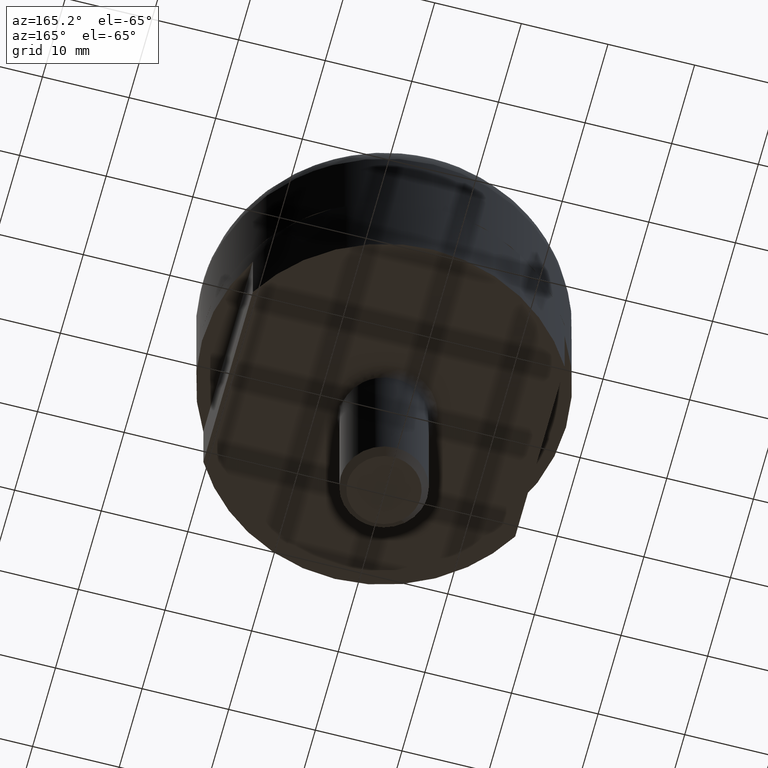
[diagram: clean part render]
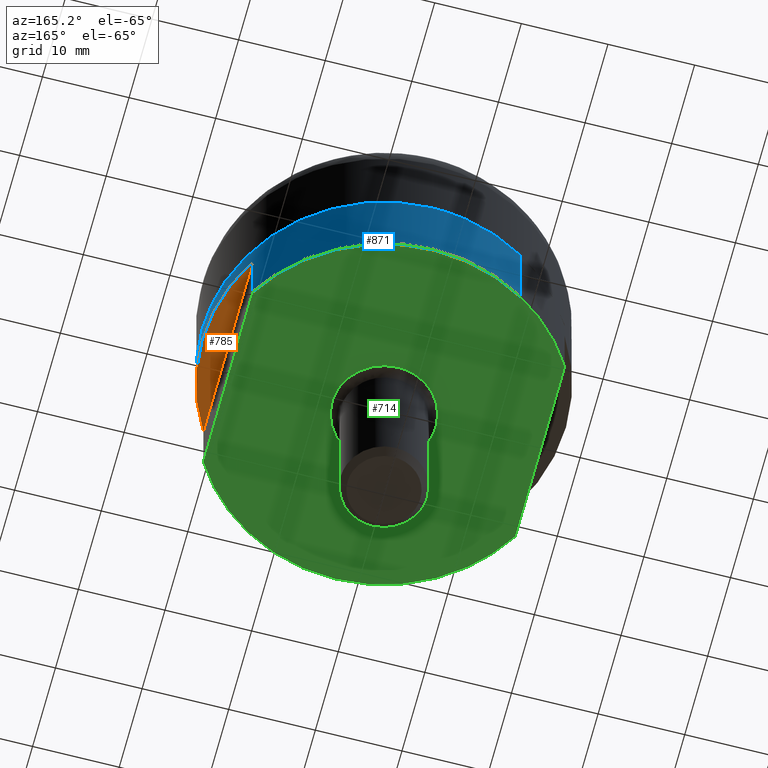
[diagram: same view with three faces highlighted in distinct colors, each labeled with its STEP entity id]
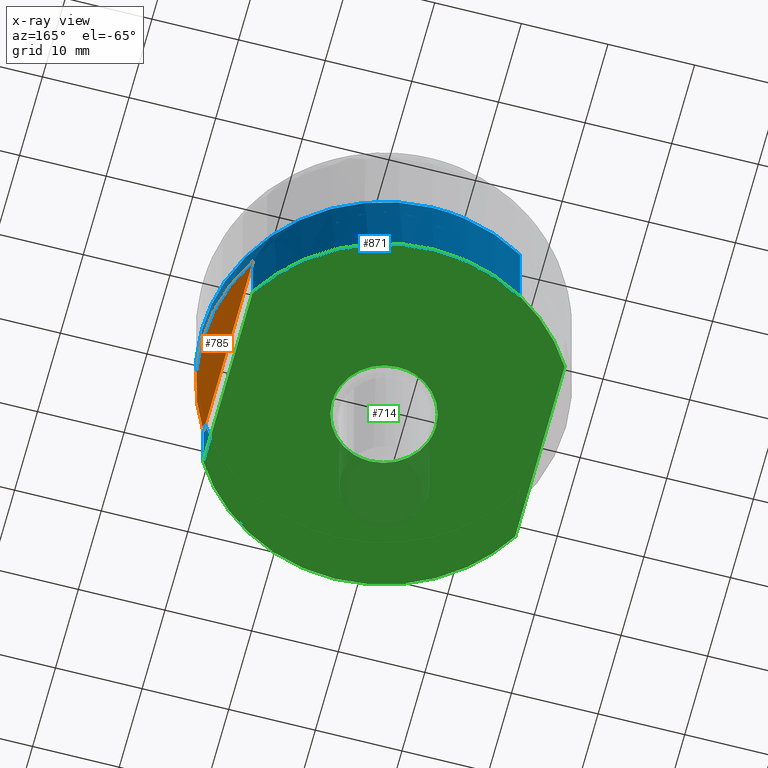
[diagram: x-ray of the same camera — body ghosted, the three highlighted faces saturated]
A machine part, auxiliary view with three faces highlighted in distinct colors.
The next image is the same camera in x-ray (body ghosted, the three faces saturated) — at least one of them is partly hidden behind the body in this view.
Their STEP definitions:

[orange] entity #785 — the highlighted face is a freeform B-spline surface patch.
#721=CARTESIAN_POINT('',(18.0,10.816653826392100,-2.999999999999890));
#722=VERTEX_POINT('',#721);
#728=CARTESIAN_POINT('',(18.0,-10.816653826392100,-2.999999999999890));
#729=VERTEX_POINT('',#728);
#730=CARTESIAN_POINT('',(18.0,10.816653826392100,-2.999999999999890));
#731=CARTESIAN_POINT('',(18.0,-10.816653826392100,-2.999999999999890));
#732=QUASI_UNIFORM_CURVE('',1,(#730,#731),.UNSPECIFIED.,.F.,.U.);
#733=EDGE_CURVE('',#722,#729,#732,.T.);
#763=CARTESIAN_POINT('',(17.850150777518301,-11.897237501719120,-2.999999999999885));
#764=CARTESIAN_POINT('',(21.149833853424020,-11.897237501719120,-2.999999999999885));
#765=CARTESIAN_POINT('',(17.850150777518301,11.897238081969650,-2.999999999999885));
#766=CARTESIAN_POINT('',(21.149833853424020,11.897238081969650,-2.999999999999885));
#767=B_SPLINE_SURFACE_WITH_KNOTS('',1,1,((#763,#765),(#764,#766)),.UNSPECIFIED.,.F.,.F.,.U.,(2,2),(2,2),(0.0,3.299683075905723),(0.0,23.794475583688769),.UNSPECIFIED.);
#768=ORIENTED_EDGE('',*,*,#733,.F.);
#769=CARTESIAN_POINT('',(18.0,10.816653826392100,-2.999999999999890));
#770=CARTESIAN_POINT('',(18.640261822979880,9.751415909548017,-2.999999999999894));
#771=CARTESIAN_POINT('',(19.523012920720419,7.934352155205978,-2.999999999999862));
#772=CARTESIAN_POINT('',(20.342070714251111,5.364845502601074,-2.999999999999931));
#773=CARTESIAN_POINT('',(20.812546782247551,3.102390366966495,-2.999999999999860));
#774=CARTESIAN_POINT('',(21.074491795838561,0.357682834763216,-2.999999999999926));
#775=CARTESIAN_POINT('',(20.917636671123539,-2.608428473869856,-2.999999999999864));
#776=CARTESIAN_POINT('',(20.349859904753821,-5.367465265790456,-2.999999999999877));
#777=CARTESIAN_POINT('',(19.472315904815499,-8.041982449755542,-2.999999999999946));
#778=CARTESIAN_POINT('',(18.625026153203489,-9.776783883757247,-2.999999999999766));
#779=CARTESIAN_POINT('',(18.0,-10.816653826392100,-2.999999999999890));
#780=B_SPLINE_CURVE_WITH_KNOTS('',3,(#769,#770,#771,#772,#773,#774,#775,#776,#777,#778,#779),.UNSPECIFIED.,.F.,.U.,(4,1,1,1,1,1,1,1,4),(0.000000011724651,3.728515753972715,6.036646359682383,8.078454645306664,10.652905422523309,14.292639255965531,16.955873402172472,19.086460224496768,22.726197012007109),.UNSPECIFIED.);
#781=EDGE_CURVE('',#722,#729,#780,.T.);
#782=ORIENTED_EDGE('',*,*,#781,.T.);
#783=EDGE_LOOP('',(#768,#782));
#784=FACE_OUTER_BOUND('',#783,.T.);
#785=ADVANCED_FACE('',(#784),#767,.F.);

[blue] entity #871 — the highlighted face is a freeform B-spline surface patch.
#635=CARTESIAN_POINT('',(-10.971620108010400,17.905964151798781,-11.0));
#636=VERTEX_POINT('',#635);
#646=CARTESIAN_POINT('',(18.0,10.816653826392120,-11.0));
#647=VERTEX_POINT('',#646);
#648=CARTESIAN_POINT('',(-10.971620108010400,17.905964151798781,-11.0));
#649=CARTESIAN_POINT('',(-9.903762503232743,18.560401576978691,-11.000000000000030));
#650=CARTESIAN_POINT('',(-8.038991982905726,19.484748932551071,-10.999999999999959));
#651=CARTESIAN_POINT('',(-5.527567434600105,20.295251511061931,-11.000000000000080));
#652=CARTESIAN_POINT('',(-3.499994881529289,20.734800005452168,-10.999999999999901));
#653=CARTESIAN_POINT('',(-1.182962774164561,21.023715820562849,-11.000000000000060));
#654=CARTESIAN_POINT('',(1.199405306146342,21.017882838122159,-10.999999999999909));
#655=CARTESIAN_POINT('',(3.945174443199853,20.679079667130679,-11.000000000000099));
#656=CARTESIAN_POINT('',(6.677954784807954,20.001502984924048,-10.999999999999750));
#657=CARTESIAN_POINT('',(9.431035623598554,18.836212442105310,-11.000000000000361));
#658=CARTESIAN_POINT('',(11.587743410571891,17.554655895525670,-10.999999999999680));
#659=CARTESIAN_POINT('',(13.328033997341800,16.272853027337710,-11.000000000000441));
#660=CARTESIAN_POINT('',(15.063034921849320,14.709072699962270,-10.999999999999730));
#661=CARTESIAN_POINT('',(16.678526059521200,12.844122446179110,-11.000000000000041));
#662=CARTESIAN_POINT('',(17.621844833717489,11.445956099059851,-11.000000000000020));
#663=CARTESIAN_POINT('',(18.0,10.816653826392120,-11.0));
#664=B_SPLINE_CURVE_WITH_KNOTS('',3,(#648,#649,#650,#651,#652,#653,#654,#655,#656,#657,#658,#659,#660,#661,#662,#663),.UNSPECIFIED.,.F.,.U.,(4,1,1,1,1,1,1,1,1,1,1,1,1,4),(0.000000010740870,3.757308544535931,6.219002469875125,7.903322455832388,9.976330131259925,13.215393874047930,15.029278024907070,18.268335181461751,21.636955427380059,23.969090545565301,25.782972198039872,28.115107316225409,30.965492330260279,33.168041826833687),.UNSPECIFIED.);
#665=EDGE_CURVE('',#636,#647,#664,.T.);
#667=CARTESIAN_POINT('',(18.0,-10.816653826392100,-11.0));
#668=VERTEX_POINT('',#667);
#674=CARTESIAN_POINT('',(10.971620108010310,-17.905964151798798,-11.0));
#675=VERTEX_POINT('',#674);
#676=CARTESIAN_POINT('',(18.0,-10.816653826392100,-11.0));
#677=CARTESIAN_POINT('',(17.391685867320302,-11.829140317076920,-10.999999999999980));
#678=CARTESIAN_POINT('',(16.342834170716628,-13.281158547203759,-11.000000000000080));
#679=CARTESIAN_POINT('',(14.510383442330211,-15.236535976107209,-10.999999999999879));
#680=CARTESIAN_POINT('',(12.856240004781590,-16.661096743405199,-11.000000000000229));
#681=CARTESIAN_POINT('',(11.553525402015101,-17.549418429968661,-10.999999999999821));
#682=CARTESIAN_POINT('',(10.971620108010310,-17.905964151798798,-11.0));
#683=B_SPLINE_CURVE_WITH_KNOTS('',3,(#676,#677,#678,#679,#680,#681,#682),.UNSPECIFIED.,.F.,.U.,(4,1,1,1,4),(2.173664E-009,3.543500553725789,5.354614775067438,8.031929008025049,10.079282317643500),.UNSPECIFIED.);
#684=EDGE_CURVE('',#668,#675,#683,.T.);
#721=CARTESIAN_POINT('',(18.0,10.816653826392100,-2.999999999999890));
#722=VERTEX_POINT('',#721);
#723=CARTESIAN_POINT('',(18.0,10.816653826392100,-2.999999999999890));
#724=CARTESIAN_POINT('',(18.0,10.816653826392120,-11.0));
#725=QUASI_UNIFORM_CURVE('',1,(#723,#724),.UNSPECIFIED.,.F.,.U.);
#726=EDGE_CURVE('',#722,#647,#725,.T.);
#728=CARTESIAN_POINT('',(18.0,-10.816653826392100,-2.999999999999890));
#729=VERTEX_POINT('',#728);
#735=CARTESIAN_POINT('',(18.0,-10.816653826392100,-2.999999999999890));
#736=CARTESIAN_POINT('',(18.0,-10.816653826392100,-11.0));
#737=QUASI_UNIFORM_CURVE('',1,(#735,#736),.UNSPECIFIED.,.F.,.U.);
#738=EDGE_CURVE('',#729,#668,#737,.T.);
#769=CARTESIAN_POINT('',(18.0,10.816653826392100,-2.999999999999890));
#770=CARTESIAN_POINT('',(18.640261822979880,9.751415909548017,-2.999999999999894));
#771=CARTESIAN_POINT('',(19.523012920720419,7.934352155205978,-2.999999999999862));
#772=CARTESIAN_POINT('',(20.342070714251111,5.364845502601074,-2.999999999999931));
#773=CARTESIAN_POINT('',(20.812546782247551,3.102390366966495,-2.999999999999860));
#774=CARTESIAN_POINT('',(21.074491795838561,0.357682834763216,-2.999999999999926));
#775=CARTESIAN_POINT('',(20.917636671123539,-2.608428473869856,-2.999999999999864));
#776=CARTESIAN_POINT('',(20.349859904753821,-5.367465265790456,-2.999999999999877));
#777=CARTESIAN_POINT('',(19.472315904815499,-8.041982449755542,-2.999999999999946));
#778=CARTESIAN_POINT('',(18.625026153203489,-9.776783883757247,-2.999999999999766));
#779=CARTESIAN_POINT('',(18.0,-10.816653826392100,-2.999999999999890));
#780=B_SPLINE_CURVE_WITH_KNOTS('',3,(#769,#770,#771,#772,#773,#774,#775,#776,#777,#778,#779),.UNSPECIFIED.,.F.,.U.,(4,1,1,1,1,1,1,1,4),(0.000000011724651,3.728515753972715,6.036646359682383,8.078454645306664,10.652905422523309,14.292639255965531,16.955873402172472,19.086460224496768,22.726197012007109),.UNSPECIFIED.);
#781=EDGE_CURVE('',#722,#729,#780,.T.);
#786=CARTESIAN_POINT('',(-10.971620093027999,17.905964160979021,0.275000000000000));
#787=CARTESIAN_POINT('',(6.934344067951016,28.877584254006972,0.275000000000000));
#788=CARTESIAN_POINT('',(17.905964160978971,10.971620093027949,0.275000000000000));
#789=CARTESIAN_POINT('',(28.877584254006919,-6.934344067951066,0.275000000000000));
#790=CARTESIAN_POINT('',(10.971620093027900,-17.905964160979021,0.275000000000000));
#791=CARTESIAN_POINT('',(-10.971620093027999,17.905964160979021,-11.281875000000010));
#792=CARTESIAN_POINT('',(6.934344067951016,28.877584254006972,-11.281875000000005));
#793=CARTESIAN_POINT('',(17.905964160978971,10.971620093027949,-11.281875000000010));
#794=CARTESIAN_POINT('',(28.877584254006919,-6.934344067951066,-11.281875000000005));
#795=CARTESIAN_POINT('',(10.971620093027900,-17.905964160979021,-11.281875000000010));
#803=(BOUNDED_SURFACE()B_SPLINE_SURFACE(2,1,((#786,#791),(#787,#792),(#788,#793),(#789,#794),(#790,#795)),.UNSPECIFIED.,.F.,.F.,.U.)B_SPLINE_SURFACE_WITH_KNOTS((3,2,3),(2,2),(0.0,34.793939239339970,69.587878478679940),(0.0,11.556875000000010),.UNSPECIFIED.)GEOMETRIC_REPRESENTATION_ITEM()RATIONAL_B_SPLINE_SURFACE(((1.0,1.0),(0.707106781186548,0.707106781186548),(1.0,1.0),(0.707106781186548,0.707106781186548),(1.0,1.0)))REPRESENTATION_ITEM('')SURFACE());
#804=CARTESIAN_POINT('',(-10.971620106373731,17.905964152801619,-2.498002E-016));
#805=VERTEX_POINT('',#804);
#806=CARTESIAN_POINT('',(-2.486900E-014,21.0,0.0));
#807=VERTEX_POINT('',#806);
#808=CARTESIAN_POINT('',(-10.971620106373731,17.905964152801619,-2.498002E-016));
#809=CARTESIAN_POINT('',(-10.228242929205191,18.361479496069720,-2.328751E-016));
#810=CARTESIAN_POINT('',(-8.551592074780505,19.250308480628071,-1.947013E-016));
#811=CARTESIAN_POINT('',(-5.920300139718319,20.217320473010670,-1.347925E-016));
#812=CARTESIAN_POINT('',(-3.006322541744440,20.852806749503561,-6.844750E-017));
#813=CARTESIAN_POINT('',(-1.052224175627032,21.000064939820039,-2.395688E-017));
#814=CARTESIAN_POINT('',(-2.486900E-014,21.0,0.0));
#815=B_SPLINE_CURVE_WITH_KNOTS('',3,(#808,#809,#810,#811,#812,#813,#814),.UNSPECIFIED.,.F.,.U.,(4,1,1,1,4),(3.120773E-009,2.615519948360280,5.682000007244393,8.387702584440598,11.544365275281770),.UNSPECIFIED.);
#816=EDGE_CURVE('',#805,#807,#815,.T.);
#817=ORIENTED_EDGE('',*,*,#816,.T.);
#818=CARTESIAN_POINT('',(20.999999999999950,0.0,0.0));
#819=VERTEX_POINT('',#818);
#820=CARTESIAN_POINT('',(-2.486900E-014,21.0,0.0));
#821=CARTESIAN_POINT('',(1.202642667941177,21.000084755399438,0.0));
#822=CARTESIAN_POINT('',(3.564946869563099,20.796541729510000,0.0));
#823=CARTESIAN_POINT('',(6.568007611870731,20.014869099981190,0.0));
#824=CARTESIAN_POINT('',(9.233680729669025,18.920221889785889,0.0));
#825=CARTESIAN_POINT('',(11.560531943914039,17.611530009379099,0.0));
#826=CARTESIAN_POINT('',(13.890230384052719,15.838975186768041,0.0));
#827=CARTESIAN_POINT('',(15.772127824701499,13.945473599356999,0.0));
#828=CARTESIAN_POINT('',(17.327163825108929,11.940183119056471,0.0));
#829=CARTESIAN_POINT('',(18.607276479035932,9.848396773153834,0.0));
#830=CARTESIAN_POINT('',(19.568642176138820,7.732343539539185,0.0));
#831=CARTESIAN_POINT('',(20.323830905897950,5.446344732590996,0.0));
#832=CARTESIAN_POINT('',(20.857404923694350,2.963635013888600,0.0));
#833=CARTESIAN_POINT('',(21.000046686765629,1.030835014005554,0.0));
#834=CARTESIAN_POINT('',(20.999999999999950,0.0,0.0));
#835=B_SPLINE_CURVE_WITH_KNOTS('',3,(#820,#821,#822,#823,#824,#825,#826,#827,#828,#829,#830,#831,#832,#833,#834),.UNSPECIFIED.,.F.,.U.,(4,1,1,1,1,1,1,1,1,1,1,1,4),(9.833357E-009,3.607920982806665,7.086999600226758,9.277533691626037,12.241187001472920,15.075994680785410,18.039641631834069,20.230158708332489,22.678402563237650,25.384355526376162,27.188322573082370,29.894271820692040,32.986774609286108),.UNSPECIFIED.);
#836=EDGE_CURVE('',#807,#819,#835,.T.);
#837=ORIENTED_EDGE('',*,*,#836,.T.);
#838=CARTESIAN_POINT('',(10.971620106373640,-17.905964152801619,-2.498002E-016));
#839=VERTEX_POINT('',#838);
#840=CARTESIAN_POINT('',(20.999999999999950,0.0,0.0));
#841=CARTESIAN_POINT('',(21.000004028522131,-0.670073125568860,-9.347968E-018));
#842=CARTESIAN_POINT('',(20.921122756488550,-2.317340986726850,-3.232846E-017));
#843=CARTESIAN_POINT('',(20.510721109560858,-4.774213461715115,-6.660347E-017));
#844=CARTESIAN_POINT('',(19.794709213728151,-7.129112615038669,-9.945589E-017));
#845=CARTESIAN_POINT('',(18.856826829039381,-9.342212795243077,-1.303301E-016));
#846=CARTESIAN_POINT('',(17.759146017902761,-11.293004020821421,-1.575450E-016));
#847=CARTESIAN_POINT('',(16.153781898204340,-13.512565683758551,-1.885093E-016));
#848=CARTESIAN_POINT('',(14.021026417870830,-15.775329570260240,-2.200764E-016));
#849=CARTESIAN_POINT('',(12.066782752354190,-17.235075924035019,-2.404408E-016));
#850=CARTESIAN_POINT('',(10.971620106373640,-17.905964152801619,-2.498002E-016));
#851=B_SPLINE_CURVE_WITH_KNOTS('',3,(#840,#841,#842,#843,#844,#845,#846,#847,#848,#849,#850),.UNSPECIFIED.,.F.,.U.,(4,1,1,1,1,1,1,1,4),(9.984948E-009,2.010222016590983,4.941797526002290,7.454578120345961,9.381053075232519,12.145097081076379,14.155319829793990,17.589453027543112,21.442380672718869),.UNSPECIFIED.);
#852=EDGE_CURVE('',#819,#839,#851,.T.);
#853=ORIENTED_EDGE('',*,*,#852,.T.);
#854=CARTESIAN_POINT('',(10.971620106373640,-17.905964152801619,-2.498002E-016));
#855=CARTESIAN_POINT('',(10.971620108010310,-17.905964151798798,-11.0));
#856=QUASI_UNIFORM_CURVE('',1,(#854,#855),.UNSPECIFIED.,.F.,.U.);
#857=EDGE_CURVE('',#839,#675,#856,.T.);
#858=ORIENTED_EDGE('',*,*,#857,.T.);
#859=ORIENTED_EDGE('',*,*,#684,.F.);
#860=ORIENTED_EDGE('',*,*,#738,.F.);
#861=ORIENTED_EDGE('',*,*,#781,.F.);
#862=ORIENTED_EDGE('',*,*,#726,.T.);
#863=ORIENTED_EDGE('',*,*,#665,.F.);
#864=CARTESIAN_POINT('',(-10.971620106373731,17.905964152801619,-2.498002E-016));
#865=CARTESIAN_POINT('',(-10.971620108010400,17.905964151798781,-11.0));
#866=QUASI_UNIFORM_CURVE('',1,(#864,#865),.UNSPECIFIED.,.F.,.U.);
#867=EDGE_CURVE('',#805,#636,#866,.T.);
#868=ORIENTED_EDGE('',*,*,#867,.F.);
#869=EDGE_LOOP('',(#817,#837,#853,#858,#859,#860,#861,#862,#863,#868));
#870=FACE_OUTER_BOUND('',#869,.T.);
#871=ADVANCED_FACE('',(#870),#803,.T.);

[green] entity #714 — the highlighted face is a freeform B-spline surface patch.
#439=CARTESIAN_POINT('',(5.999526265152366,0.075396239348814,-11.0));
#440=VERTEX_POINT('',#439);
#452=CARTESIAN_POINT('',(6.000000000000080,0.0,-11.0));
#453=VERTEX_POINT('',#452);
#454=CARTESIAN_POINT('',(5.999526265152366,0.075396239348814,-11.0));
#455=CARTESIAN_POINT('',(6.000000000000080,0.0,-11.0));
#456=QUASI_UNIFORM_CURVE('',1,(#454,#455),.UNSPECIFIED.,.F.,.U.);
#457=EDGE_CURVE('',#440,#453,#456,.T.);
#459=CARTESIAN_POINT('',(0.037663752118435,-5.999881785650003,-11.0));
#460=VERTEX_POINT('',#459);
#461=CARTESIAN_POINT('',(6.000000000000080,0.0,-11.0));
#462=CARTESIAN_POINT('',(6.000155193756291,-0.513377440335337,-11.000000000000011));
#463=CARTESIAN_POINT('',(5.902118810022293,-1.271100831382459,-10.999999999999970));
#464=CARTESIAN_POINT('',(5.557716439425562,-2.318035877778419,-11.000000000000020));
#465=CARTESIAN_POINT('',(5.184041528732633,-3.063852842163035,-10.999999999999980));
#466=CARTESIAN_POINT('',(4.664070049390450,-3.806009640111362,-11.000000000000060));
#467=CARTESIAN_POINT('',(4.111445897933976,-4.397178277248862,-10.999999999999909));
#468=CARTESIAN_POINT('',(3.348813266597124,-5.012098902612362,-11.0));
#469=CARTESIAN_POINT('',(2.449697879706530,-5.519207509172169,-11.000000000000020));
#470=CARTESIAN_POINT('',(1.283770213409043,-5.902908959678372,-10.999999999999920));
#471=CARTESIAN_POINT('',(0.477680134581831,-5.997196379859600,-11.000000000000041));
#472=CARTESIAN_POINT('',(0.037663752118435,-5.999881785650003,-11.0));
#473=B_SPLINE_CURVE_WITH_KNOTS('',3,(#461,#462,#463,#464,#465,#466,#467,#468,#469,#470,#471,#472),.UNSPECIFIED.,.F.,.U.,(4,1,1,1,1,1,1,1,1,4),(6.407150E-009,1.540079521624735,2.273455472379792,3.300186296851579,4.033555297288653,4.986931950778290,5.720297187364178,6.967041913852735,8.067111556403537,9.387172391668507),.UNSPECIFIED.);
#474=EDGE_CURVE('',#453,#460,#473,.T.);
#476=CARTESIAN_POINT('',(-5.999526265152366,-0.075396239348812,-11.0));
#477=VERTEX_POINT('',#476);
#478=CARTESIAN_POINT('',(0.037663752118435,-5.999881785650003,-11.0));
#479=CARTESIAN_POINT('',(-0.255669538127295,-6.001734161980139,-11.0));
#480=CARTESIAN_POINT('',(-0.915991067425839,-5.957388973674420,-11.0));
#481=CARTESIAN_POINT('',(-1.799927903001592,-5.748512167508949,-11.0));
#482=CARTESIAN_POINT('',(-2.639816483634141,-5.408276345019521,-11.0));
#483=CARTESIAN_POINT('',(-3.405906410587909,-4.970389668601611,-10.999999999999959));
#484=CARTESIAN_POINT('',(-4.112805649335035,-4.400847264816393,-11.000000000000149));
#485=CARTESIAN_POINT('',(-4.690884301342961,-3.767471837303573,-10.999999999999821));
#486=CARTESIAN_POINT('',(-5.225212515870703,-3.005472281432461,-11.000000000000210));
#487=CARTESIAN_POINT('',(-5.649706774626533,-2.118739421621152,-10.999999999999920));
#488=CARTESIAN_POINT('',(-5.930309752693587,-1.076853702262204,-10.999999999999980));
#489=CARTESIAN_POINT('',(-5.995251923023216,-0.417603252708049,-11.000000000000011));
#490=CARTESIAN_POINT('',(-5.999526265152366,-0.075396239348812,-11.0));
#491=B_SPLINE_CURVE_WITH_KNOTS('',3,(#478,#479,#480,#481,#482,#483,#484,#485,#486,#487,#488,#489,#490),.UNSPECIFIED.,.F.,.U.,(4,1,1,1,1,1,1,1,1,1,4),(6.407543E-009,0.880025913710901,1.980091115303326,2.713463048897238,3.593508302191941,4.620214431214710,5.426909281227275,6.160276765818260,7.407012802197857,8.360398858765764,9.387102165503359),.UNSPECIFIED.);
#492=EDGE_CURVE('',#460,#477,#491,.T.);
#544=CARTESIAN_POINT('',(-6.000000000000080,0.0,-11.0));
#545=VERTEX_POINT('',#544);
#546=CARTESIAN_POINT('',(-5.999526265152366,-0.075396239348812,-11.0));
#547=CARTESIAN_POINT('',(-6.000000000000080,0.0,-11.0));
#548=QUASI_UNIFORM_CURVE('',1,(#546,#547),.UNSPECIFIED.,.F.,.U.);
#549=EDGE_CURVE('',#477,#545,#548,.T.);
#551=CARTESIAN_POINT('',(-0.037663752118447,5.999881785650004,-11.0));
#552=VERTEX_POINT('',#551);
#553=CARTESIAN_POINT('',(-6.000000000000080,0.0,-11.0));
#554=CARTESIAN_POINT('',(-6.000012109130747,0.293342442039922,-11.0));
#555=CARTESIAN_POINT('',(-5.955105093419184,0.904481172040774,-10.999999999999989));
#556=CARTESIAN_POINT('',(-5.751680256836394,1.788729071553806,-11.000000000000020));
#557=CARTESIAN_POINT('',(-5.379944482297447,2.722427425356172,-10.999999999999980));
#558=CARTESIAN_POINT('',(-4.776585560126764,3.706666663442168,-10.999999999999970));
#559=CARTESIAN_POINT('',(-3.942342753023974,4.577463175390253,-11.000000000000091));
#560=CARTESIAN_POINT('',(-2.973783768505164,5.247446798435667,-10.999999999999901));
#561=CARTESIAN_POINT('',(-2.125068735489750,5.634584215108023,-11.000000000000091));
#562=CARTESIAN_POINT('',(-1.137201521942369,5.920031480682612,-10.999999999999901));
#563=CARTESIAN_POINT('',(-0.477681454565862,5.997201835088323,-11.000000000000149));
#564=CARTESIAN_POINT('',(-0.037663752118447,5.999881785650004,-11.0));
#565=B_SPLINE_CURVE_WITH_KNOTS('',3,(#553,#554,#555,#556,#557,#558,#559,#560,#561,#562,#563,#564),.UNSPECIFIED.,.F.,.U.,(4,1,1,1,1,1,1,1,1,4),(6.407102E-009,0.880032497082802,1.833432283637209,2.713483348738199,3.886882227014917,5.280277004568635,6.306999109008338,7.407068215096590,8.067111556403521,9.387172391668498),.UNSPECIFIED.);
#566=EDGE_CURVE('',#545,#552,#565,.T.);
#568=CARTESIAN_POINT('',(-0.037663752118447,5.999881785650004,-11.0));
#569=CARTESIAN_POINT('',(0.475696048792808,6.003257217239082,-11.000000000000020));
#570=CARTESIAN_POINT('',(1.282950006730200,5.903978500692916,-10.999999999999940));
#571=CARTESIAN_POINT('',(2.282178726932398,5.568643878328944,-11.000000000000069));
#572=CARTESIAN_POINT('',(3.028986943794637,5.200318991116300,-10.999999999999940));
#573=CARTESIAN_POINT('',(3.821947969900943,4.666427987026236,-11.000000000000011));
#574=CARTESIAN_POINT('',(4.545461689646060,3.965053622492007,-11.000000000000110));
#575=CARTESIAN_POINT('',(5.089399905226880,3.208948468646000,-10.999999999999870));
#576=CARTESIAN_POINT('',(5.531705768030837,2.390469237125218,-11.000000000000130));
#577=CARTESIAN_POINT('',(5.888712133929938,1.369684224473510,-11.000000000000041));
#578=CARTESIAN_POINT('',(5.994073753267172,0.515383062139136,-10.999999999999959));
#579=CARTESIAN_POINT('',(5.999526265152366,0.075396239348814,-11.0));
#580=B_SPLINE_CURVE_WITH_KNOTS('',3,(#568,#569,#570,#571,#572,#573,#574,#575,#576,#577,#578,#579),.UNSPECIFIED.,.F.,.U.,(4,1,1,1,1,1,1,1,1,4),(6.409087E-009,1.540068000268740,2.420113038347659,3.153487508901965,4.033525121998034,5.280237502414078,6.160276765818366,6.820315450367030,8.067051205570779,9.387102165503363),.UNSPECIFIED.);
#581=EDGE_CURVE('',#552,#440,#580,.T.);
#621=CARTESIAN_POINT('',(-19.798199930225010,23.091625878902999,-11.0));
#622=CARTESIAN_POINT('',(19.798200895820258,23.091625878902999,-11.0));
#623=CARTESIAN_POINT('',(-19.798199930225010,-23.091639021727151,-11.0));
#624=CARTESIAN_POINT('',(19.798200895820258,-23.091639021727151,-11.0));
#625=B_SPLINE_SURFACE_WITH_KNOTS('',1,1,((#621,#623),(#622,#624)),.UNSPECIFIED.,.F.,.F.,.U.,(2,2),(2,2),(0.0,39.596400826045269),(0.0,46.183264900630149),.UNSPECIFIED.);
#626=CARTESIAN_POINT('',(-18.0,-10.816653826392081,-11.0));
#627=VERTEX_POINT('',#626);
#628=CARTESIAN_POINT('',(-18.0,10.816653826392100,-11.0));
#629=VERTEX_POINT('',#628);
#630=CARTESIAN_POINT('',(-18.0,-10.816653826392081,-11.0));
#631=CARTESIAN_POINT('',(-18.0,10.816653826392100,-11.0));
#632=QUASI_UNIFORM_CURVE('',1,(#630,#631),.UNSPECIFIED.,.F.,.U.);
#633=EDGE_CURVE('',#627,#629,#632,.T.);
#634=ORIENTED_EDGE('',*,*,#633,.T.);
#635=CARTESIAN_POINT('',(-10.971620108010400,17.905964151798781,-11.0));
#636=VERTEX_POINT('',#635);
#637=CARTESIAN_POINT('',(-18.0,10.816653826392100,-11.0));
#638=CARTESIAN_POINT('',(-17.391676262311591,11.829130809956020,-10.999999999999950));
#639=CARTESIAN_POINT('',(-16.111513688414600,13.601501920320130,-11.000000000000060));
#640=CARTESIAN_POINT('',(-13.740048845833771,15.993494653178139,-11.0));
#641=CARTESIAN_POINT('',(-11.978817758098520,17.288935282974549,-11.000000000000060));
#642=CARTESIAN_POINT('',(-10.971620108010400,17.905964151798781,-11.0));
#643=B_SPLINE_CURVE_WITH_KNOTS('',3,(#637,#638,#639,#640,#641,#642),.UNSPECIFIED.,.F.,.U.,(4,1,1,4),(2.170600E-009,3.543500553723250,6.535781766090368,10.079282317643450),.UNSPECIFIED.);
#644=EDGE_CURVE('',#629,#636,#643,.T.);
#645=ORIENTED_EDGE('',*,*,#644,.T.);
#646=CARTESIAN_POINT('',(18.0,10.816653826392120,-11.0));
#647=VERTEX_POINT('',#646);
#648=CARTESIAN_POINT('',(-10.971620108010400,17.905964151798781,-11.0));
#649=CARTESIAN_POINT('',(-9.903762503232743,18.560401576978691,-11.000000000000030));
#650=CARTESIAN_POINT('',(-8.038991982905726,19.484748932551071,-10.999999999999959));
#651=CARTESIAN_POINT('',(-5.527567434600105,20.295251511061931,-11.000000000000080));
#652=CARTESIAN_POINT('',(-3.499994881529289,20.734800005452168,-10.999999999999901));
#653=CARTESIAN_POINT('',(-1.182962774164561,21.023715820562849,-11.000000000000060));
#654=CARTESIAN_POINT('',(1.199405306146342,21.017882838122159,-10.999999999999909));
#655=CARTESIAN_POINT('',(3.945174443199853,20.679079667130679,-11.000000000000099));
#656=CARTESIAN_POINT('',(6.677954784807954,20.001502984924048,-10.999999999999750));
#657=CARTESIAN_POINT('',(9.431035623598554,18.836212442105310,-11.000000000000361));
#658=CARTESIAN_POINT('',(11.587743410571891,17.554655895525670,-10.999999999999680));
#659=CARTESIAN_POINT('',(13.328033997341800,16.272853027337710,-11.000000000000441));
#660=CARTESIAN_POINT('',(15.063034921849320,14.709072699962270,-10.999999999999730));
#661=CARTESIAN_POINT('',(16.678526059521200,12.844122446179110,-11.000000000000041));
#662=CARTESIAN_POINT('',(17.621844833717489,11.445956099059851,-11.000000000000020));
#663=CARTESIAN_POINT('',(18.0,10.816653826392120,-11.0));
#664=B_SPLINE_CURVE_WITH_KNOTS('',3,(#648,#649,#650,#651,#652,#653,#654,#655,#656,#657,#658,#659,#660,#661,#662,#663),.UNSPECIFIED.,.F.,.U.,(4,1,1,1,1,1,1,1,1,1,1,1,1,4),(0.000000010740870,3.757308544535931,6.219002469875125,7.903322455832388,9.976330131259925,13.215393874047930,15.029278024907070,18.268335181461751,21.636955427380059,23.969090545565301,25.782972198039872,28.115107316225409,30.965492330260279,33.168041826833687),.UNSPECIFIED.);
#665=EDGE_CURVE('',#636,#647,#664,.T.);
#666=ORIENTED_EDGE('',*,*,#665,.T.);
#667=CARTESIAN_POINT('',(18.0,-10.816653826392100,-11.0));
#668=VERTEX_POINT('',#667);
#669=CARTESIAN_POINT('',(18.0,10.816653826392120,-11.0));
#670=CARTESIAN_POINT('',(18.0,-10.816653826392100,-11.0));
#671=QUASI_UNIFORM_CURVE('',1,(#669,#670),.UNSPECIFIED.,.F.,.U.);
#672=EDGE_CURVE('',#647,#668,#671,.T.);
#673=ORIENTED_EDGE('',*,*,#672,.T.);
#674=CARTESIAN_POINT('',(10.971620108010310,-17.905964151798798,-11.0));
#675=VERTEX_POINT('',#674);
#676=CARTESIAN_POINT('',(18.0,-10.816653826392100,-11.0));
#677=CARTESIAN_POINT('',(17.391685867320302,-11.829140317076920,-10.999999999999980));
#678=CARTESIAN_POINT('',(16.342834170716628,-13.281158547203759,-11.000000000000080));
#679=CARTESIAN_POINT('',(14.510383442330211,-15.236535976107209,-10.999999999999879));
#680=CARTESIAN_POINT('',(12.856240004781590,-16.661096743405199,-11.000000000000229));
#681=CARTESIAN_POINT('',(11.553525402015101,-17.549418429968661,-10.999999999999821));
#682=CARTESIAN_POINT('',(10.971620108010310,-17.905964151798798,-11.0));
#683=B_SPLINE_CURVE_WITH_KNOTS('',3,(#676,#677,#678,#679,#680,#681,#682),.UNSPECIFIED.,.F.,.U.,(4,1,1,1,4),(2.173664E-009,3.543500553725789,5.354614775067438,8.031929008025049,10.079282317643500),.UNSPECIFIED.);
#684=EDGE_CURVE('',#668,#675,#683,.T.);
#685=ORIENTED_EDGE('',*,*,#684,.T.);
#686=CARTESIAN_POINT('',(10.971620108010310,-17.905964151798798,-11.0));
#687=CARTESIAN_POINT('',(10.198322566323030,-18.379830205899658,-10.999999999999980));
#688=CARTESIAN_POINT('',(8.705063649454324,-19.166592769680999,-11.000000000000011));
#689=CARTESIAN_POINT('',(6.320866369200654,-20.076691689362239,-11.000000000000030));
#690=CARTESIAN_POINT('',(4.139355736619171,-20.627712618017242,-10.999999999999931));
#691=CARTESIAN_POINT('',(1.700350168081247,-20.977743265229631,-11.000000000000091));
#692=CARTESIAN_POINT('',(-0.982943491333768,-21.054023252796259,-10.999999999999950));
#693=CARTESIAN_POINT('',(-3.907363460175956,-20.702317144493879,-10.999999999999989));
#694=CARTESIAN_POINT('',(-6.710122166858460,-19.961247467055529,-11.000000000000149));
#695=CARTESIAN_POINT('',(-8.953935536535070,-19.043982977503742,-10.999999999999661));
#696=CARTESIAN_POINT('',(-11.155293775083930,-17.843921761532020,-11.000000000000520));
#697=CARTESIAN_POINT('',(-13.425838436327640,-16.256583858003779,-10.999999999999631));
#698=CARTESIAN_POINT('',(-15.897648505301820,-13.886401795818470,-11.000000000000270));
#699=CARTESIAN_POINT('',(-17.354987779328560,-11.890228724861030,-10.999999999999840));
#700=CARTESIAN_POINT('',(-18.0,-10.816653826392081,-11.0));
#701=B_SPLINE_CURVE_WITH_KNOTS('',3,(#686,#687,#688,#689,#690,#691,#692,#693,#694,#695,#696,#697,#698,#699,#700),.UNSPECIFIED.,.F.,.U.,(4,1,1,1,1,1,1,1,1,1,1,1,4),(0.000000010734368,2.720815802556281,5.052937392746451,7.644195928176305,9.458076561202553,12.438027597410001,15.677103013581620,18.268335181458649,21.118713615901040,22.932585674887459,25.782972198038308,29.410737717392049,33.168041826833580),.UNSPECIFIED.);
#702=EDGE_CURVE('',#675,#627,#701,.T.);
#703=ORIENTED_EDGE('',*,*,#702,.T.);
#704=EDGE_LOOP('',(#634,#645,#666,#673,#685,#703));
#705=FACE_OUTER_BOUND('',#704,.T.);
#706=ORIENTED_EDGE('',*,*,#549,.F.);
#707=ORIENTED_EDGE('',*,*,#492,.F.);
#708=ORIENTED_EDGE('',*,*,#474,.F.);
#709=ORIENTED_EDGE('',*,*,#457,.F.);
#710=ORIENTED_EDGE('',*,*,#581,.F.);
#711=ORIENTED_EDGE('',*,*,#566,.F.);
#712=EDGE_LOOP('',(#706,#707,#708,#709,#710,#711));
#713=FACE_BOUND('',#712,.T.);
#714=ADVANCED_FACE('',(#705,#713),#625,.T.);